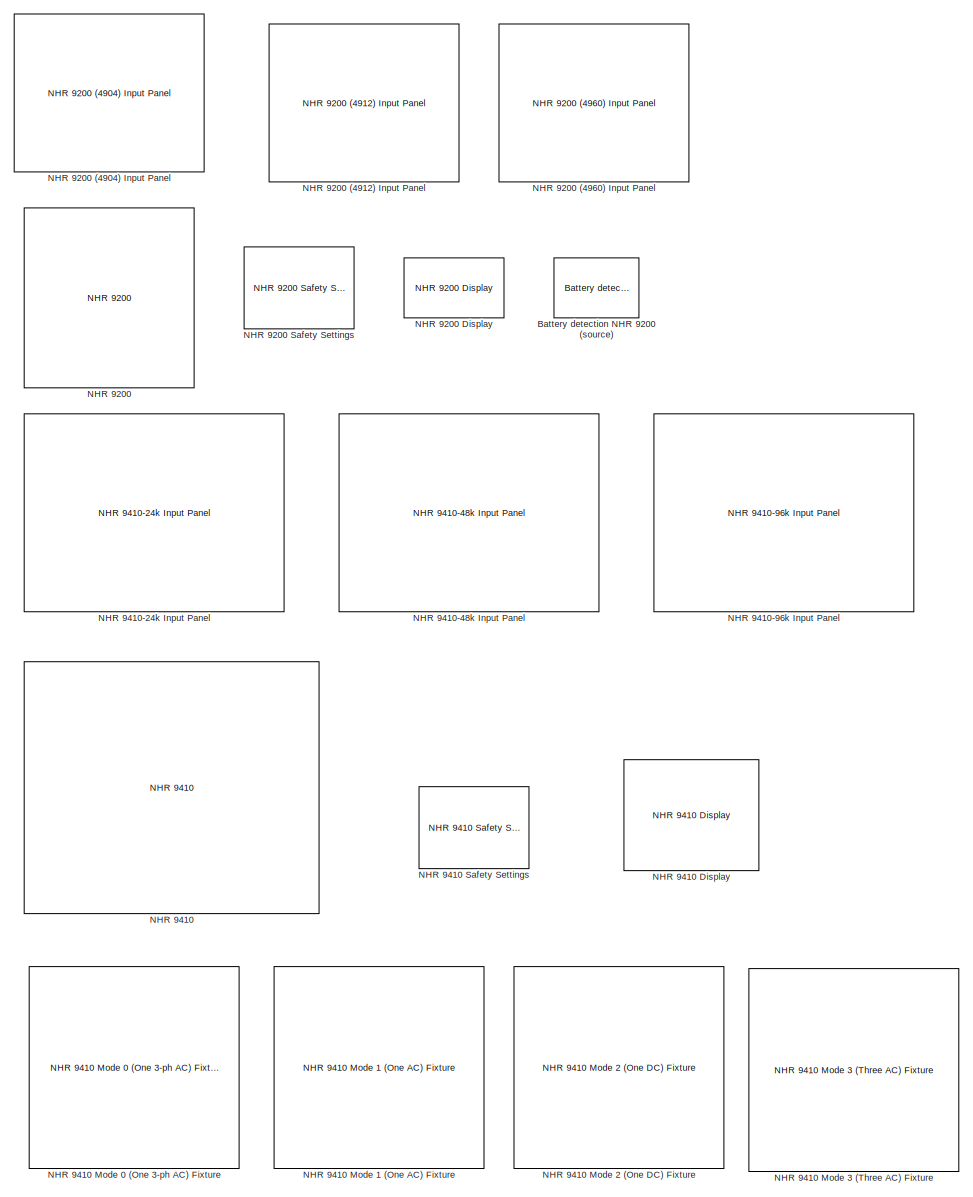
[diagram: root canvas - part 1/3, full width, top band]
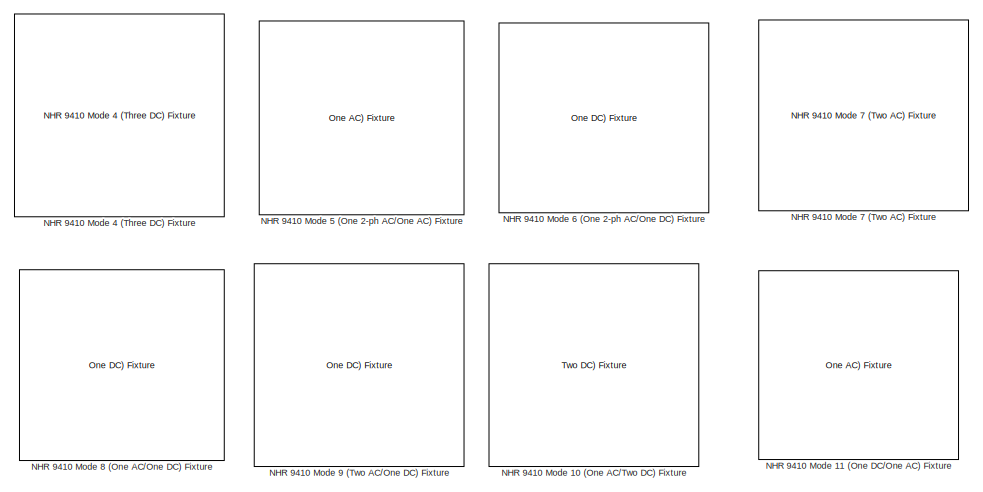
[diagram: root canvas - part 2/3, full width, middle band]
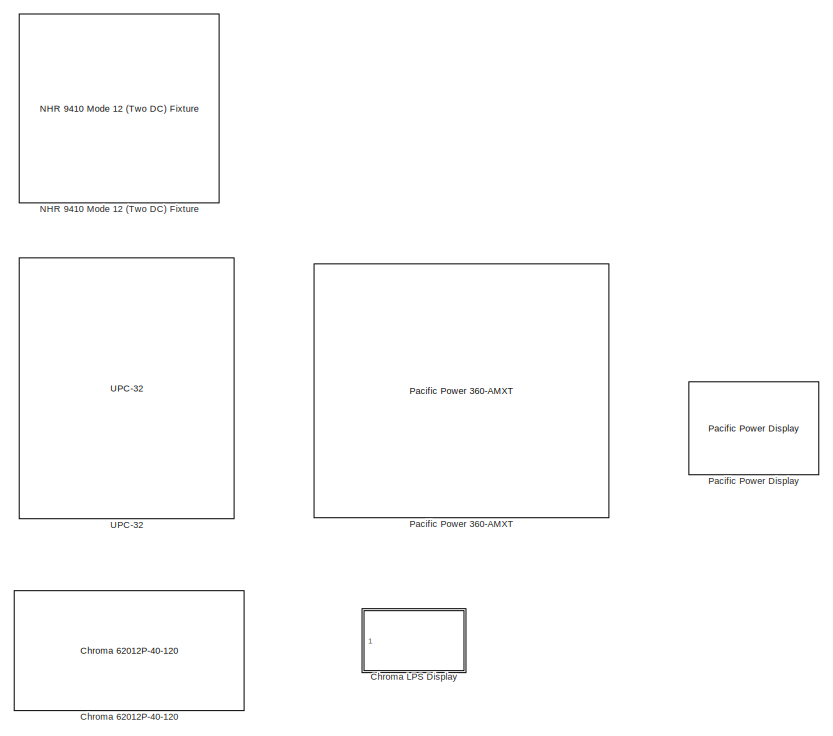
[diagram: root canvas - part 3/3, full width, bottom band]
MODEL slx_b839fe856c3b
KIND library
CONFIG AbsTol = auto
CONFIG EnableMultiTasking = off
CONFIG FixedStep = auto
CONFIG MaxStep = auto
CONFIG MinStep = auto
CONFIG RelTol = 1e-3
CONFIG SampleTimeConstraint = Unconstrained
CONFIG SolverName = VariableStepAuto
CONFIG StartTime = 0.0
CONFIG StopTime = 10.0
BLOCK [Reference] Battery detection NHR 9200 (source)  REF=$bdroot/Battery detection
NHR 9200 (source)
  Ports = [0, 0, 0, 0, 0, 2, 1]
  SourceBlock = $bdroot/Battery detection\nNHR 9200 (source)
BLOCK [Reference] Chroma 62012P-40-120  REF=$bdroot/Chroma 62012P-40-120
  Ports = [0, 1, 0, 0, 0, 0, 2]
  SourceBlock = $bdroot/Chroma 62012P-40-120
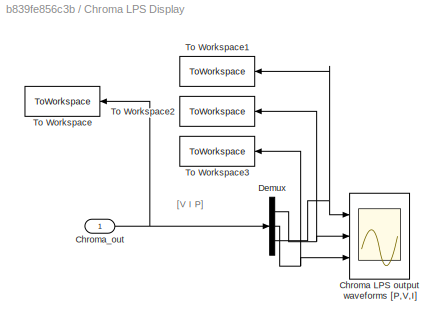
BLOCK [SubSystem] Chroma LPS Display
  Ports = [1]
  RequestExecContextInheritance = off
BLOCK [Scope] Chroma LPS Display/Chroma LPS output waveforms [P,V,I]
  Floating = off
  NumInputPorts = 3
  Ports = [3]
  ScopeSpecificationString = Simulink.scopes.TimeScopeBlockCfg('CurrentConfiguration', extmgr.ConfigurationSet(extmgr.Configuration('Core','General UI',true,'FigureColor',[1 1 1]),extmgr.Configuration('Core','Source UI',true),extmgr.Configuration('Sources','WiredSimulink',true),extmgr.Configuration('Visuals','Time Domain',true,'PlotType','Line','SerializedDisplays',{struct('MinYLimReal','-23.17042','MaxYLimReal','208.69578','...<+3438ch>
BLOCK [Inport] Chroma LPS Display/Chroma_out
BLOCK [Demux] Chroma LPS Display/Demux
  Outputs = 3
  Ports = [1, 3]
BLOCK [ToWorkspace] Chroma LPS Display/To Workspace
  FixptAsFi = on
  MaxDataPoints = inf
  Ports = [1]
  SampleTime = -1
  SaveFormat = Timeseries
  VariableName = chromaOut
BLOCK [ToWorkspace] Chroma LPS Display/To Workspace1
  FixptAsFi = on
  MaxDataPoints = inf
  Ports = [1]
  SampleTime = -1
  SaveFormat = Timeseries
  VariableName = powerOut
BLOCK [ToWorkspace] Chroma LPS Display/To Workspace2
  FixptAsFi = on
  MaxDataPoints = inf
  Ports = [1]
  SampleTime = -1
  SaveFormat = Timeseries
  VariableName = voltageOut
BLOCK [ToWorkspace] Chroma LPS Display/To Workspace3
  FixptAsFi = on
  MaxDataPoints = inf
  Ports = [1]
  SampleTime = -1
  SaveFormat = Timeseries
  VariableName = currentOut
BLOCK [Reference] NHR 9200  REF=$bdroot/NHR 9200
  Ports = [6, 1, 0, 0, 0, 0, 2]
  SourceBlock = $bdroot/NHR 9200
BLOCK [Reference] NHR 9200 (4904) Input Panel  REF=$bdroot/NHR 9200 (4904) Input Panel
  Ports = [0, 5]
  SourceBlock = $bdroot/NHR 9200 (4904) Input Panel
BLOCK [Reference] NHR 9200 (4912) Input Panel  REF=$bdroot/NHR 9200 (4912) Input Panel
  Ports = [0, 5]
  SourceBlock = $bdroot/NHR 9200 (4912) Input Panel
BLOCK [Reference] NHR 9200 (4960) Input Panel  REF=$bdroot/NHR 9200 (4960) Input Panel
  Ports = [0, 5]
  SourceBlock = $bdroot/NHR 9200 (4960) Input Panel
BLOCK [Reference] NHR 9200 Display  REF=$bdroot/NHR 9200 Display
  Ports = [2]
  SourceBlock = $bdroot/NHR 9200 Display
  SourceType = SubSystem
BLOCK [Reference] NHR 9200 Safety Settings  REF=$bdroot/NHR 9200 Safety Settings
  Ports = [1, 2]
  SourceBlock = $bdroot/NHR 9200 Safety Settings
BLOCK [Reference] NHR 9410  REF=$bdroot/NHR 9410
  Ports = [5, 1, 0, 0, 0, 0, 3]
  SourceBlock = $bdroot/NHR 9410
BLOCK [Reference] NHR 9410 Display  REF=$bdroot/NHR 9410 Display
  Ports = [2]
  SourceBlock = $bdroot/NHR 9410 Display
  SourceType = SubSystem
BLOCK [Reference] NHR 9410 Mode 0 (One 3-ph AC) Fixture  REF=$bdroot/NHR 9410 Mode 0 (One 3-ph AC) Fixture
  Ports = [0, 0, 0, 0, 0, 3, 4]
  SourceBlock = $bdroot/NHR 9410 Mode 0 (One 3-ph AC) Fixture
  SourceType = SubSystem
BLOCK [Reference] NHR 9410 Mode 1 (One AC) Fixture  REF=$bdroot/NHR 9410 Mode 1 (One AC) Fixture
  Ports = [0, 0, 0, 0, 0, 3, 2]
  SourceBlock = $bdroot/NHR 9410 Mode 1 (One AC) Fixture
  SourceType = SubSystem
BLOCK [Reference] NHR 9410 Mode 10 (One AC//Two DC) Fixture  REF=$bdroot/NHR 9410 Mode 10 (One AC//Two DC) Fixture
  Ports = [0, 0, 0, 0, 0, 3, 6]
  SourceBlock = $bdroot/NHR 9410 Mode 10 (One AC//Two DC) Fixture
  SourceType = SubSystem
BLOCK [Reference] NHR 9410 Mode 11 (One DC//One AC) Fixture  REF=$bdroot/NHR 9410 Mode 11 (One DC//One AC) Fixture
  Ports = [0, 0, 0, 0, 0, 3, 4]
  SourceBlock = $bdroot/NHR 9410 Mode 11 (One DC//One AC) Fixture
  SourceType = SubSystem
BLOCK [Reference] NHR 9410 Mode 12 (Two DC) Fixture  REF=$bdroot/NHR 9410 Mode 12 (Two DC) Fixture
  Ports = [0, 0, 0, 0, 0, 3, 4]
  SourceBlock = $bdroot/NHR 9410 Mode 12 (Two DC) Fixture
  SourceType = SubSystem
BLOCK [Reference] NHR 9410 Mode 2 (One DC) Fixture  REF=$bdroot/NHR 9410 Mode 2 (One DC) Fixture
  Ports = [0, 0, 0, 0, 0, 3, 2]
  SourceBlock = $bdroot/NHR 9410 Mode 2 (One DC) Fixture
  SourceType = SubSystem
BLOCK [Reference] NHR 9410 Mode 3 (Three AC) Fixture  REF=$bdroot/NHR 9410 Mode 3 (Three AC) Fixture
  Ports = [0, 0, 0, 0, 0, 3, 6]
  SourceBlock = $bdroot/NHR 9410 Mode 3 (Three AC) Fixture
  SourceType = SubSystem
BLOCK [Reference] NHR 9410 Mode 4 (Three DC) Fixture  REF=$bdroot/NHR 9410 Mode 4 (Three DC) Fixture
  Ports = [0, 0, 0, 0, 0, 3, 6]
  SourceBlock = $bdroot/NHR 9410 Mode 4 (Three DC) Fixture
  SourceType = SubSystem
BLOCK [Reference] NHR 9410 Mode 5 (One 2-ph AC//One AC) Fixture  REF=$bdroot/NHR 9410 Mode 5 (One 2-ph AC//One AC) Fixture
  Ports = [0, 0, 0, 0, 0, 3, 5]
  SourceBlock = $bdroot/NHR 9410 Mode 5 (One 2-ph AC//One AC) Fixture
  SourceType = SubSystem
BLOCK [Reference] NHR 9410 Mode 6 (One 2-ph AC//One DC) Fixture  REF=$bdroot/NHR 9410 Mode 6 (One 2-ph AC//One DC) Fixture
  Ports = [0, 0, 0, 0, 0, 3, 5]
  SourceBlock = $bdroot/NHR 9410 Mode 6 (One 2-ph AC//One DC) Fixture
  SourceType = SubSystem
BLOCK [Reference] NHR 9410 Mode 7 (Two AC) Fixture  REF=$bdroot/NHR 9410 Mode 7 (Two AC) Fixture
  Ports = [0, 0, 0, 0, 0, 3, 4]
  SourceBlock = $bdroot/NHR 9410 Mode 7 (Two AC) Fixture
  SourceType = SubSystem
BLOCK [Reference] NHR 9410 Mode 8 (One AC//One DC) Fixture  REF=$bdroot/NHR 9410 Mode 8 (One AC//One DC) Fixture
  Ports = [0, 0, 0, 0, 0, 3, 4]
  SourceBlock = $bdroot/NHR 9410 Mode 8 (One AC//One DC) Fixture
  SourceType = SubSystem
BLOCK [Reference] NHR 9410 Mode 9 (Two AC//One DC) Fixture  REF=$bdroot/NHR 9410 Mode 9 (Two AC//One DC) Fixture
  Ports = [0, 0, 0, 0, 0, 3, 6]
  SourceBlock = $bdroot/NHR 9410 Mode 9 (Two AC//One DC) Fixture
  SourceType = SubSystem
BLOCK [Reference] NHR 9410 Safety Settings  REF=$bdroot/NHR 9410 Safety Settings
  Ports = [1, 2]
  SourceBlock = $bdroot/NHR 9410 Safety Settings
BLOCK [Reference] NHR 9410-24k Input Panel  REF=$bdroot/NHR 9410-24k Input Panel
  Ports = [0, 4]
  SourceBlock = $bdroot/NHR 9410-24k Input Panel
BLOCK [Reference] NHR 9410-48k Input Panel  REF=$bdroot/NHR 9410-48k Input Panel
  Ports = [0, 4]
  SourceBlock = $bdroot/NHR 9410-48k Input Panel
BLOCK [Reference] NHR 9410-96k Input Panel  REF=$bdroot/NHR 9410-96k Input Panel
  Ports = [0, 4]
  SourceBlock = $bdroot/NHR 9410-96k Input Panel
BLOCK [Reference] Pacific Power 360-AMXT  REF=$bdroot/Pacific Power 360-AMXT
  Ports = [4, 2, 0, 0, 0, 0, 3]
  SourceBlock = $bdroot/Pacific Power 360-AMXT
BLOCK [Reference] Pacific Power Display  REF=$bdroot/Pacific Power Display
  Ports = [2]
  SourceBlock = $bdroot/Pacific Power Display
  SourceType = SubSystem
BLOCK [Reference] UPC-32  REF=$bdroot/UPC-32
  Ports = [0, 4]
  SourceBlock = $bdroot/UPC-32
ANNOTATION Chroma LPS Display: [V I P]
NET Chroma LPS Display/Chroma_out:1 -> Chroma LPS Display/Demux:1, Chroma LPS Display/To Workspace:1
NET Chroma LPS Display/Demux:1 -> Chroma LPS Display/Chroma LPS output waveforms [P,V,I]:2, Chroma LPS Display/To Workspace2:1
NET Chroma LPS Display/Demux:2 -> Chroma LPS Display/Chroma LPS output waveforms [P,V,I]:3, Chroma LPS Display/To Workspace3:1
NET Chroma LPS Display/Demux:3 -> Chroma LPS Display/Chroma LPS output waveforms [P,V,I]:1, Chroma LPS Display/To Workspace1:1
note: NET lines group one-source signal fan-out (src -> all destinations, sorted); 1:1 wires keep LINE
